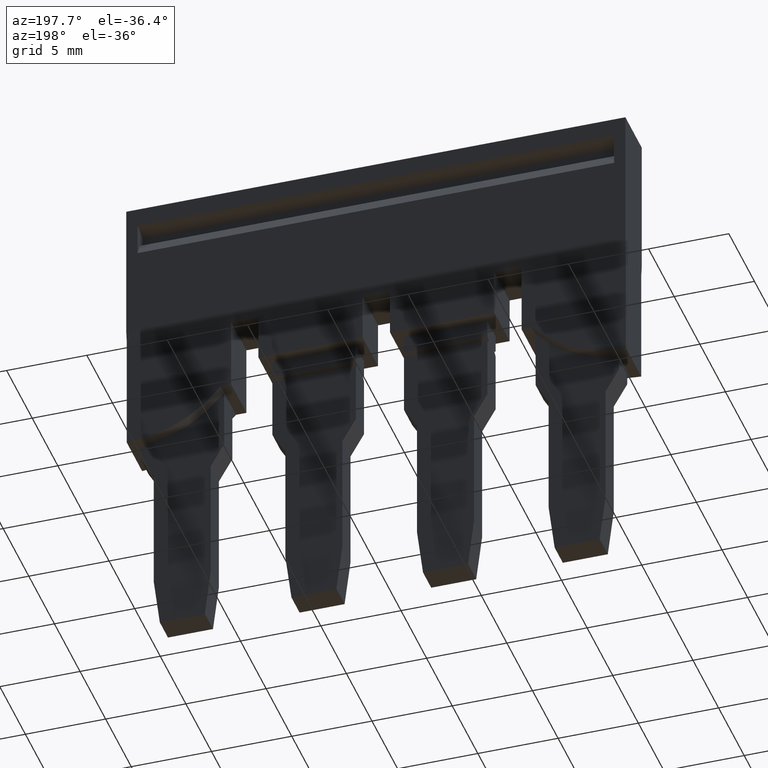
[diagram: clean part render]
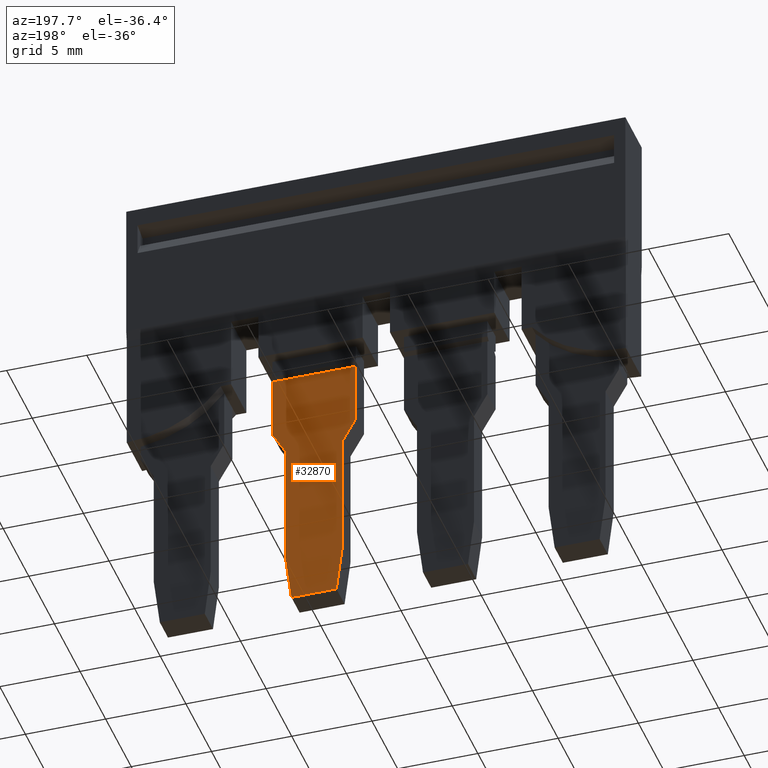
[diagram: same view with one face highlighted and labeled with its STEP entity id]
A machine part, auxiliary view. The second image highlights one B-rep face of the part: STEP entity #32870.
In plain terms, the highlighted planar face has unit normal (0, 1, 0).
Its self-contained STEP definition (entity closure, byte-faithful):
#22520=CARTESIAN_POINT('',(3.18553886079775,-19.9538803596618,
58.9425038689778));
#22530=DIRECTION('',(-6.12323399573677E-16,9.62406761519564E-15,1.));
#22540=VECTOR('',#22530,1.);
#22550=LINE('',#22520,#22540);
#22560=CARTESIAN_POINT('',(3.18553886079776,-19.953880359662,
44.4599999999886));
#22570=VERTEX_POINT('',#22560);
#22580=CARTESIAN_POINT('',(3.18553886079775,-19.9538803596619,
49.659999999995));
#22590=VERTEX_POINT('',#22580);
#22600=EDGE_CURVE('',#22570,#22590,#22550,.T.);
#27170=CARTESIAN_POINT('',(3.18553886079775,-34.1523076176597,
49.6599999999951));
#27180=DIRECTION('',(-1.78023596619793E-30,1.,-7.43325173856627E-15));
#27190=VECTOR('',#27180,1.);
#27200=LINE('',#27170,#27190);
#27210=CARTESIAN_POINT('',(3.18553886079775,-23.8389640912953,
49.659999999995));
#27220=VERTEX_POINT('',#27210);
#27230=EDGE_CURVE('',#27220,#22590,#27200,.T.);
#28380=CARTESIAN_POINT('',(3.18553886079775,-25.2938867695578,
48.8200000000501));
#28390=VERTEX_POINT('',#28380);
#28420=CARTESIAN_POINT('',(3.18553886079775,-12.8979338181015,
55.9768067734351));
#28430=DIRECTION('',(-3.33066907387547E-16,0.866025403784444,
0.499999999999991));
#28440=VECTOR('',#28430,1.);
#28450=LINE('',#28420,#28440);
#28460=EDGE_CURVE('',#28390,#27220,#28450,.T.);
#30590=CARTESIAN_POINT('',(3.18553886079776,-36.0978098180412,
45.6463850860779));
#30600=VERTEX_POINT('',#30590);
#30680=CARTESIAN_POINT('',(3.18553886079776,-33.0323992863094,
45.269999999952));
#30690=VERTEX_POINT('',#30680);
#30720=CARTESIAN_POINT('',(3.18553886079776,-34.2683405505009,
45.4217545053776));
#30730=DIRECTION('',(-7.25296460102191E-17,-0.992546151641321,
0.121869343405157));
#30740=VECTOR('',#30730,1.);
#30750=LINE('',#30720,#30740);
#30760=EDGE_CURVE('',#30690,#30600,#30750,.T.);
#31890=CARTESIAN_POINT('',(3.18553886079776,-34.1523076176597,
45.2699999999521));
#31900=DIRECTION('',(5.89879369098875E-31,-1.,9.86325155142624E-15));
#31910=VECTOR('',#31900,1.);
#31920=LINE('',#31890,#31910);
#31930=CARTESIAN_POINT('',(3.18553886079776,-25.241925245351,
45.269999999952));
#31940=VERTEX_POINT('',#31930);
#31950=EDGE_CURVE('',#31940,#30690,#31920,.T.);
#32240=CARTESIAN_POINT('',(3.18553886079776,-23.8389640912838,
44.4599999999887));
#32250=VERTEX_POINT('',#32240);
#32280=CARTESIAN_POINT('',(3.18553886079776,-12.8979338181015,
38.1431932265549));
#32290=DIRECTION('',(3.33066907387547E-16,0.866025403784434,
-0.500000000000009));
#32300=VECTOR('',#32290,1.);
#32310=LINE('',#32280,#32300);
#32320=EDGE_CURVE('',#31940,#32250,#32310,.T.);
#32460=CARTESIAN_POINT('',(3.18553886079775,-9.03050213141882,
48.3735412365496));
#32470=DIRECTION('',(-1.,-6.62937908991853E-30,-6.12323399573677E-16));
#32480=DIRECTION('',(-2.38601212364875E-30,-1.,1.47232511771462E-14));
#32490=AXIS2_PLACEMENT_3D('',#32460,#32470,#32480);
#32500=PLANE('',#32490);
#32510=ORIENTED_EDGE('',*,*,#28460,.T.);
#32520=CARTESIAN_POINT('',(3.18553886079775,-12.8979338181015,
48.82000000005));
#32530=DIRECTION('',(3.15544362088405E-30,-1.,5.00325192570631E-15));
#32540=VECTOR('',#32530,1.);
#32550=LINE('',#32520,#32540);
#32560=CARTESIAN_POINT('',(3.18553886079775,-33.0792532827681,
48.8200000000501));
#32570=VERTEX_POINT('',#32560);
#32580=EDGE_CURVE('',#28390,#32570,#32550,.T.);
#32590=ORIENTED_EDGE('',*,*,#32580,.F.);
#32600=CARTESIAN_POINT('',(3.18553886079775,-12.8979338181015,
51.2979544489603));
#32610=DIRECTION('',(7.63278329429795E-17,-0.992546151641323,
-0.121869343405143));
#32620=VECTOR('',#32610,1.);
#32630=LINE('',#32600,#32620);
#32640=CARTESIAN_POINT('',(3.18553886079775,-36.0978098181753,
48.4493678612896));
#32650=VERTEX_POINT('',#32640);
#32660=EDGE_CURVE('',#32570,#32650,#32630,.T.);
#32670=ORIENTED_EDGE('',*,*,#32660,.F.);
#32680=CARTESIAN_POINT('',(3.18553886079775,-36.097809818677,
58.9425038689779));
#32690=DIRECTION('',(-6.12323399572515E-16,-4.78190627556485E-11,1.));
#32700=VECTOR('',#32690,1.);
#32710=LINE('',#32680,#32700);
#32720=EDGE_CURVE('',#30600,#32650,#32710,.T.);
#32730=ORIENTED_EDGE('',*,*,#32720,.T.);
#32740=ORIENTED_EDGE('',*,*,#30760,.T.);
#32750=ORIENTED_EDGE('',*,*,#31950,.T.);
#32760=ORIENTED_EDGE('',*,*,#32320,.F.);
#32770=CARTESIAN_POINT('',(3.18553886079776,-34.1523076176597,
44.4599999999888));
#32780=DIRECTION('',(-8.46789875866302E-31,-1.,1.24365036642726E-14));
#32790=VECTOR('',#32780,1.);
#32800=LINE('',#32770,#32790);
#32810=EDGE_CURVE('',#22570,#32250,#32800,.T.);
#32820=ORIENTED_EDGE('',*,*,#32810,.T.);
#32830=ORIENTED_EDGE('',*,*,#22600,.F.);
#32840=ORIENTED_EDGE('',*,*,#27230,.T.);
#32850=EDGE_LOOP('',(#32840,#32830,#32820,#32760,#32750,#32740,#32730,
#32670,#32590,#32510));
#32860=FACE_OUTER_BOUND('',#32850,.T.);
#32870=ADVANCED_FACE('',(#32860),#32500,.T.);